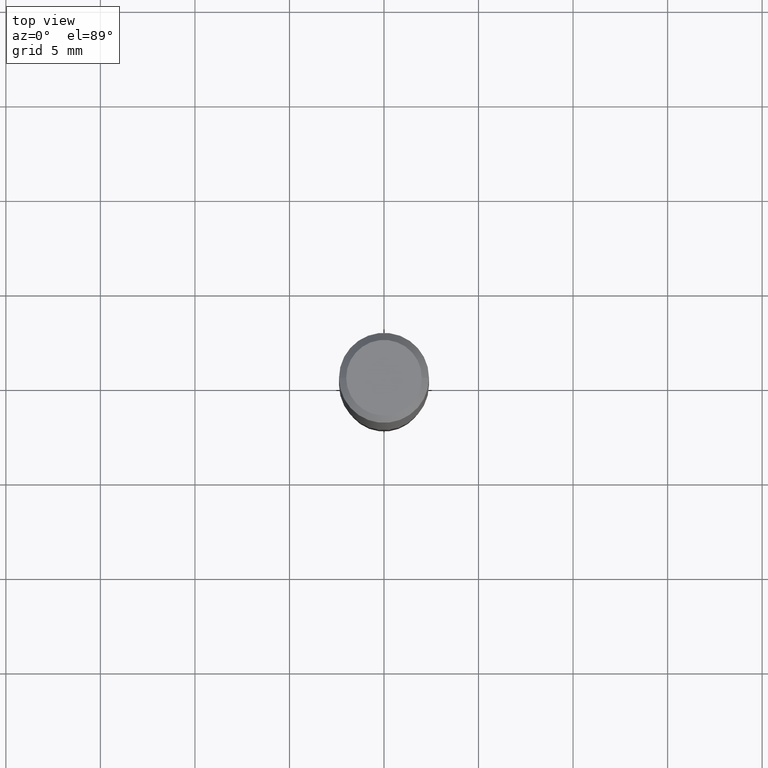
[diagram: clean part render]
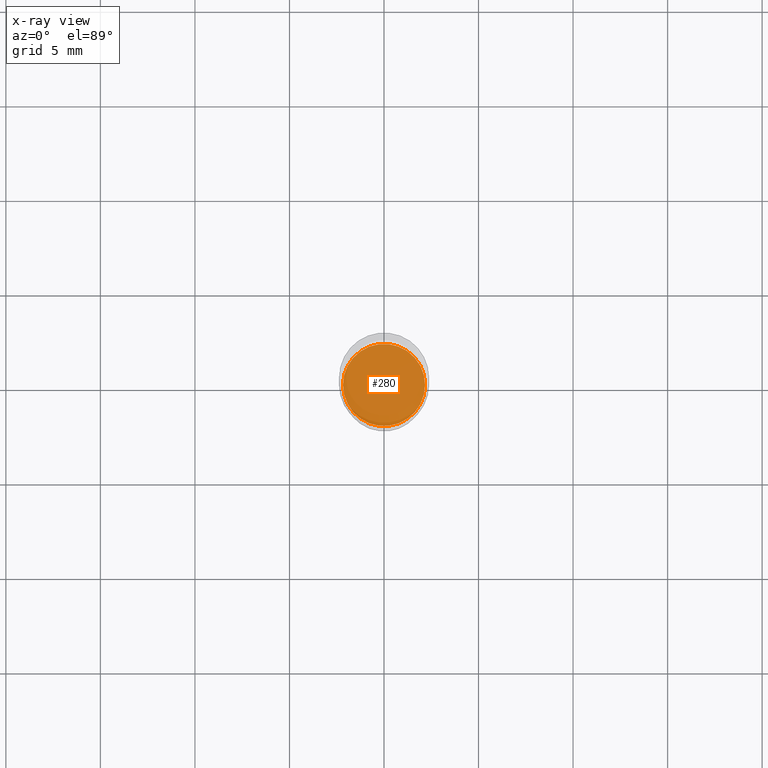
[diagram: x-ray — body ghosted, one internal face saturated and labeled with its STEP entity id]
A machine part, top view, then the same camera in x-ray: the body is ghosted and one INTERNAL B-rep face — a face not visible from any outside direction — is saturated and labeled: STEP entity #280.
In plain terms, the highlighted planar face has unit normal (-0, 0, 1).
Its self-contained STEP definition (entity closure, byte-faithful):
#37 = EDGE_CURVE ( 'NONE', #454, #216, #172, .T. ) ;
#50 = ORIENTED_EDGE ( 'NONE', *, *, #362, .F. ) ;
#74 = CARTESIAN_POINT ( 'NONE',  ( -0.08544999999999998430, -2.445238176606635736E-15, -0.8750000000000001110 ) ) ;
#110 = AXIS2_PLACEMENT_3D ( 'NONE', #165, #240, #123 ) ;
#123 = DIRECTION ( 'NONE',  ( 1.000000000000000000, -6.982962677686267499E-15, 0.000000000000000000 ) ) ;
#142 = CARTESIAN_POINT ( 'NONE',  ( 0.08544999999999998430, -3.651740332296043949E-15, -0.8750000000000001110 ) ) ;
#146 = CIRCLE ( 'NONE', #110, 0.08544999999999998430 ) ;
#147 = DIRECTION ( 'NONE',  ( 1.000000000000000000, -6.982962677686267499E-15, 0.000000000000000000 ) ) ;
#159 = DIRECTION ( 'NONE',  ( 1.000000000000000000, -6.982962677686265922E-15, 4.876176775795935793E-29 ) ) ;
#165 = CARTESIAN_POINT ( 'NONE',  ( 2.139785205411994522E-29, -3.055046171487752730E-15, -0.8750000000000001110 ) ) ;
#172 = CIRCLE ( 'NONE', #337, 0.08544999999999998430 ) ;
#181 = CARTESIAN_POINT ( 'NONE',  ( 2.139785205411994522E-29, -3.055046171487752730E-15, -0.8750000000000001110 ) ) ;
#216 = VERTEX_POINT ( 'NONE', #142 ) ;
#240 = DIRECTION ( 'NONE',  ( -2.445468806185136597E-29, 3.491481338843145583E-15, 1.000000000000000000 ) ) ;
#245 = DIRECTION ( 'NONE',  ( -2.438088387897960049E-29, 3.491481338843145188E-15, 1.000000000000000000 ) ) ;
#251 = CARTESIAN_POINT ( 'NONE',  ( 2.139785205411994522E-29, -3.055046171487752730E-15, -0.8750000000000001110 ) ) ;
#280 = ADVANCED_FACE ( 'NONE', ( #291 ), #410, .F. ) ;
#291 = FACE_OUTER_BOUND ( 'NONE', #358, .T. ) ;
#299 = DIRECTION ( 'NONE',  ( -2.445468806185136597E-29, 3.491481338843145583E-15, 1.000000000000000000 ) ) ;
#337 = AXIS2_PLACEMENT_3D ( 'NONE', #181, #299, #147 ) ;
#345 = AXIS2_PLACEMENT_3D ( 'NONE', #251, #245, #159 ) ;
#356 = ORIENTED_EDGE ( 'NONE', *, *, #37, .F. ) ;
#358 = EDGE_LOOP ( 'NONE', ( #50, #356 ) ) ;
#362 = EDGE_CURVE ( 'NONE', #216, #454, #146, .T. ) ;
#410 = PLANE ( 'NONE',  #345 ) ;
#454 = VERTEX_POINT ( 'NONE', #74 ) ;